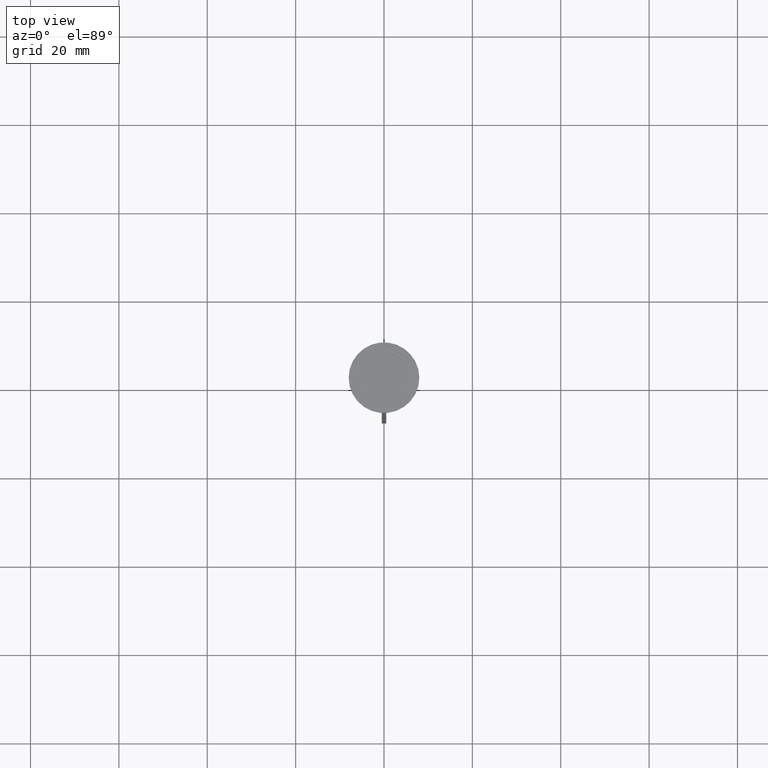
[diagram: clean part render]
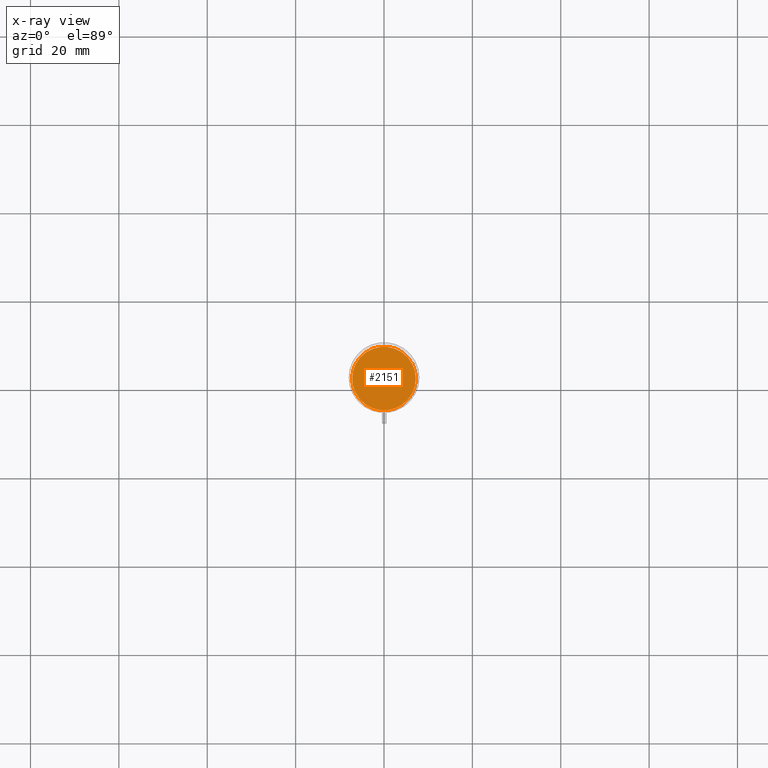
[diagram: x-ray — body ghosted, one internal face saturated and labeled with its STEP entity id]
A machine part, top view, then the same camera in x-ray: the body is ghosted and one INTERNAL B-rep face — a face not visible from any outside direction — is saturated and labeled: STEP entity #2151.
In plain terms, the highlighted planar face has unit normal (0, 0, -1).
Its self-contained STEP definition (entity closure, byte-faithful):
#61 = DIRECTION ( 'NONE',  ( 0.000000000000000000, 0.000000000000000000, -1.000000000000000000 ) ) ;
#86 = FACE_OUTER_BOUND ( 'NONE', #1643, .T. ) ;
#123 = CARTESIAN_POINT ( 'NONE',  ( 7.200000000000001954, 9.001153973733047589E-16, -12.00000000000000000 ) ) ;
#271 = VERTEX_POINT ( 'NONE', #583 ) ;
#283 = DIRECTION ( 'NONE',  ( -1.000000000000000000, 0.000000000000000000, 0.000000000000000000 ) ) ;
#406 = DIRECTION ( 'NONE',  ( -1.000000000000000000, 0.000000000000000000, 0.000000000000000000 ) ) ;
#583 = CARTESIAN_POINT ( 'NONE',  ( -7.200000000000001954, 0.000000000000000000, -12.00000000000000000 ) ) ;
#725 = CARTESIAN_POINT ( 'NONE',  ( 0.000000000000000000, 0.000000000000000000, -12.00000000000000000 ) ) ;
#772 = ORIENTED_EDGE ( 'NONE', *, *, #2150, .T. ) ;
#883 = AXIS2_PLACEMENT_3D ( 'NONE', #1791, #61, #1594 ) ;
#1012 = PLANE ( 'NONE',  #883 ) ;
#1031 = EDGE_CURVE ( 'NONE', #1399, #271, #2322, .T. ) ;
#1225 = CARTESIAN_POINT ( 'NONE',  ( 0.000000000000000000, 0.000000000000000000, -12.00000000000000000 ) ) ;
#1230 = AXIS2_PLACEMENT_3D ( 'NONE', #725, #1784, #406 ) ;
#1399 = VERTEX_POINT ( 'NONE', #123 ) ;
#1533 = CIRCLE ( 'NONE', #1693, 7.200000000000001954 ) ;
#1594 = DIRECTION ( 'NONE',  ( -1.000000000000000000, 0.000000000000000000, -0.000000000000000000 ) ) ;
#1623 = ORIENTED_EDGE ( 'NONE', *, *, #1031, .T. ) ;
#1643 = EDGE_LOOP ( 'NONE', ( #772, #1623 ) ) ;
#1693 = AXIS2_PLACEMENT_3D ( 'NONE', #1225, #2383, #283 ) ;
#1784 = DIRECTION ( 'NONE',  ( -0.000000000000000000, -0.000000000000000000, 1.000000000000000000 ) ) ;
#1791 = CARTESIAN_POINT ( 'NONE',  ( 0.000000000000000000, 0.000000000000000000, -12.00000000000000000 ) ) ;
#2150 = EDGE_CURVE ( 'NONE', #271, #1399, #1533, .T. ) ;
#2151 = ADVANCED_FACE ( 'NONE', ( #86 ), #1012, .F. ) ;
#2322 = CIRCLE ( 'NONE', #1230, 7.200000000000001954 ) ;
#2383 = DIRECTION ( 'NONE',  ( -0.000000000000000000, -0.000000000000000000, 1.000000000000000000 ) ) ;